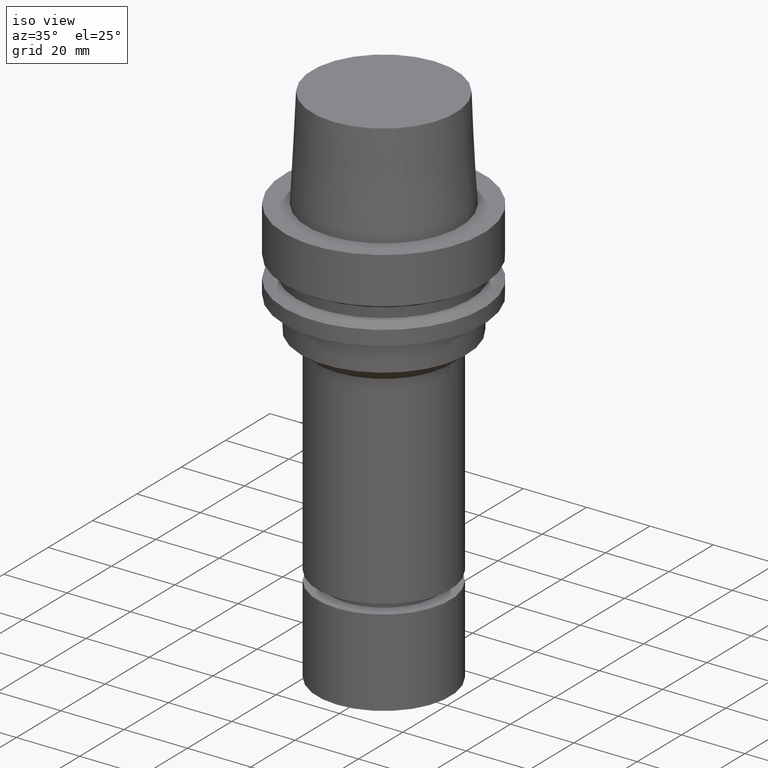
[diagram: clean part render]
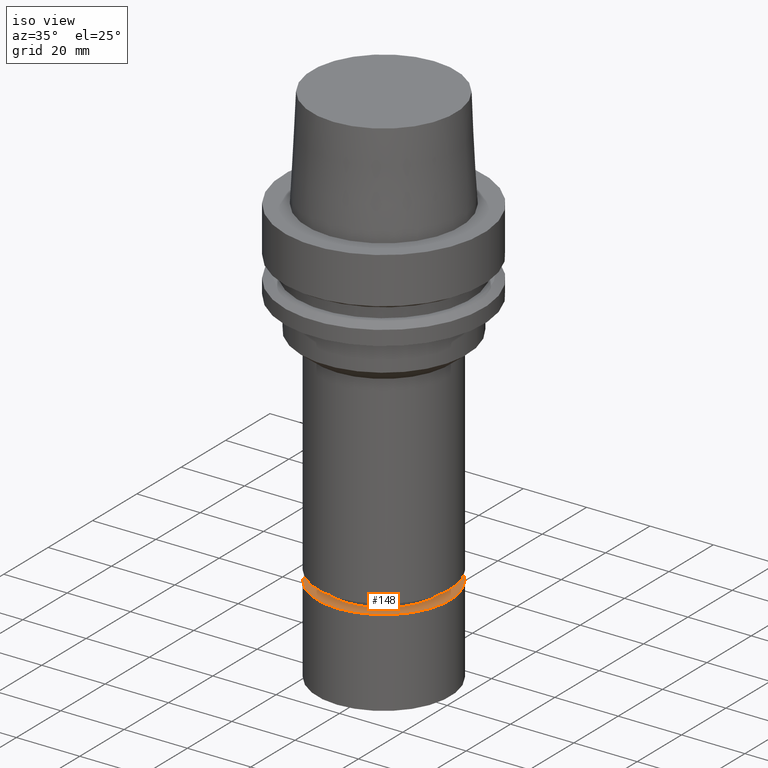
[diagram: same view with one face highlighted and labeled with its STEP entity id]
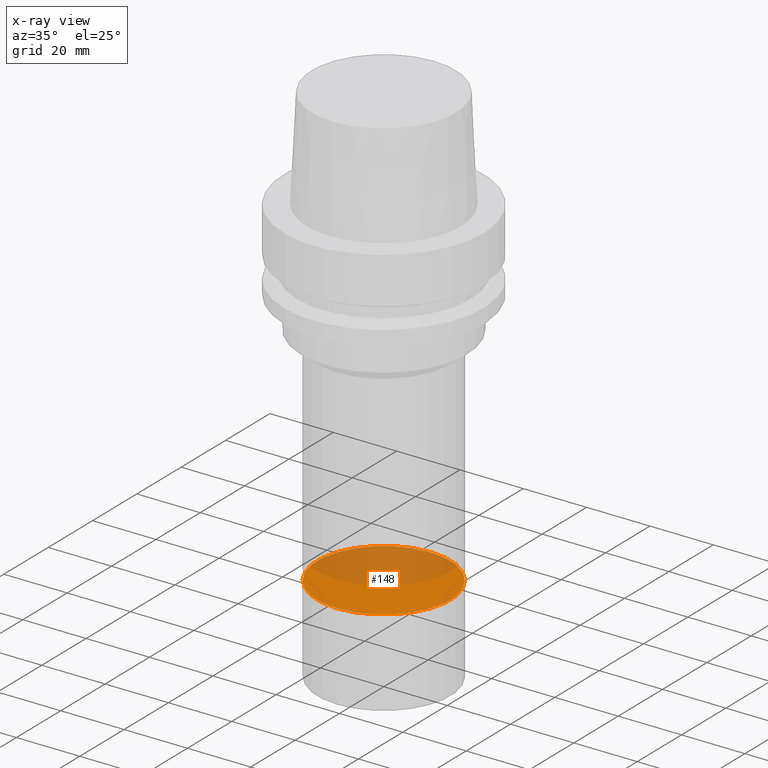
[diagram: x-ray of the same camera — body ghosted, the highlighted face saturated]
A machine part, iso view. The second image highlights one B-rep face of the part: STEP entity #148.
The next image is the same camera in x-ray: the body ghosted, the highlighted face saturated — about 48% of this face is hidden behind the body in this view.
In plain terms, the highlighted planar face has unit normal (-0, -0, 1).
Its self-contained STEP definition (entity closure, byte-faithful):
#148=ADVANCED_FACE('Unnamed[1]',(#323),#324,.T.);
#194=EDGE_CURVE('Unnamed[1]',#392,#392,#393,.T.);
#323=FACE_OUTER_BOUND('',#540,.T.);
#324=PLANE('',#541);
#392=VERTEX_POINT('',#627);
#393=CIRCLE('',#628,21.0);
#540=EDGE_LOOP('',(#751));
#541=AXIS2_PLACEMENT_3D('',#752,#753,#754);
#627=CARTESIAN_POINT('',(6.58247654541702E-015,21.0,-107.5));
#628=AXIS2_PLACEMENT_3D('',#826,#827,#828);
#751=ORIENTED_EDGE('',*,*,#194,.F.);
#752=CARTESIAN_POINT('',(6.58247654541702E-015,10.5,-107.5));
#753=DIRECTION('',(-6.12323399573677E-017,-1.22464679914735E-016,1.0));
#754=DIRECTION('',(1.23259516440783E-032,-1.0,-1.22464679914735E-016));
#826=CARTESIAN_POINT('',(6.58247654541702E-015,1.3164953090834E-014,-107.5));
#827=DIRECTION('',(6.12323399573677E-017,1.22464679914735E-016,-1.0));
#828=DIRECTION('',(-1.23259516440783E-032,1.0,1.22464679914735E-016));